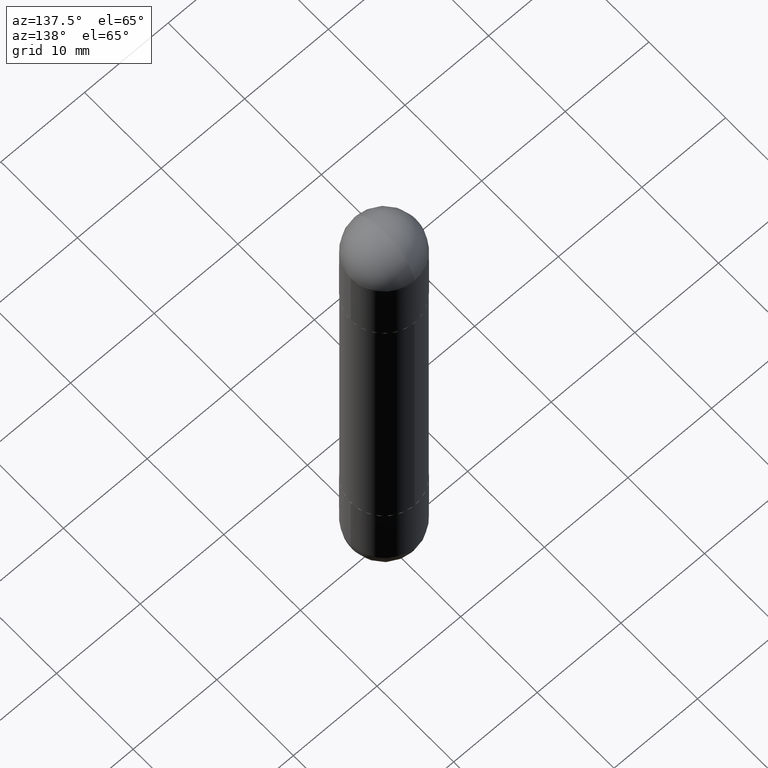
[diagram: clean part render]
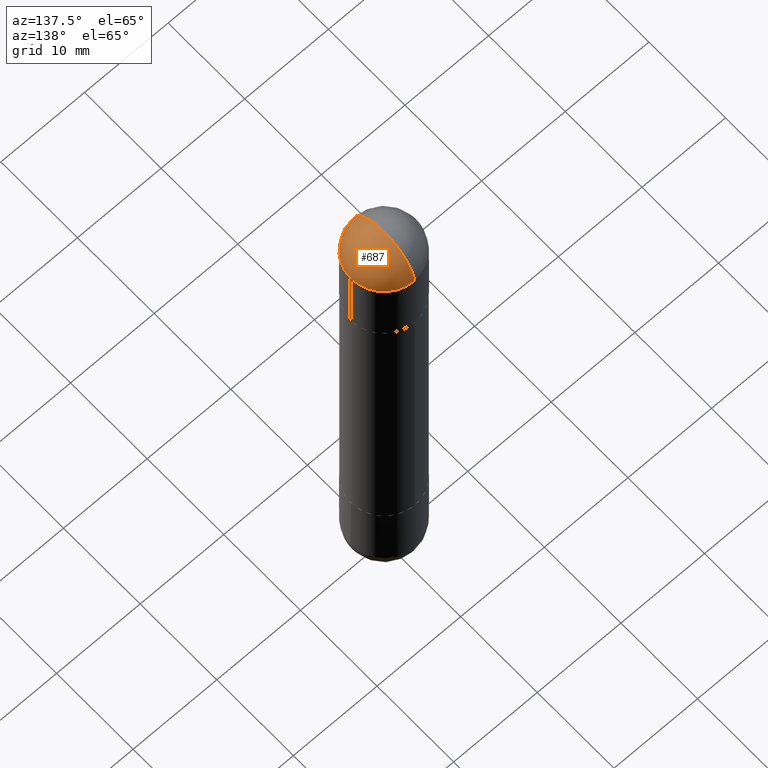
[diagram: same view with one face highlighted and labeled with its STEP entity id]
A machine part, auxiliary view. The second image highlights one B-rep face of the part: STEP entity #687.
In plain terms, the highlighted spherical surface has radius 3.9688 mm.
Its self-contained STEP definition (entity closure, byte-faithful):
#4 = EDGE_CURVE ( 'NONE', #720, #359, #300, .T. ) ;
#42 = DIRECTION ( 'NONE',  ( -1.000000000000000000, 6.982962677686265922E-15, 4.883557194083112340E-29 ) ) ;
#90 = DIRECTION ( 'NONE',  ( 6.860497997771530774E-15, 1.000000000000000000, 0.000000000000000000 ) ) ;
#137 = DIRECTION ( 'NONE',  ( 2.445468806185136597E-29, -3.491481338843145583E-15, 1.000000000000000000 ) ) ;
#148 = CARTESIAN_POINT ( 'NONE',  ( 5.400447736582527652E-29, -8.657341756053672891E-15, -0.1562500000000005551 ) ) ;
#156 = CARTESIAN_POINT ( 'NONE',  ( 5.400447736582527652E-29, -8.657341756053672891E-15, -0.1562500000000005551 ) ) ;
#189 = CARTESIAN_POINT ( 'NONE',  ( 5.789233224183170584E-29, -9.193318162129576161E-15, -3.073328992872296367E-16 ) ) ;
#198 = DIRECTION ( 'NONE',  ( 1.000000000000000000, -6.982962677686262766E-15, 0.000000000000000000 ) ) ;
#201 = VERTEX_POINT ( 'NONE', #243 ) ;
#232 = CARTESIAN_POINT ( 'NONE',  ( 5.731567514496413899E-29, -8.183159387913622595E-15, -0.1562500000000005551 ) ) ;
#233 = VERTEX_POINT ( 'NONE', #550 ) ;
#243 = CARTESIAN_POINT ( 'NONE',  ( -1.071952812151746981E-15, -0.1562500000000085487, -0.1562500000000011102 ) ) ;
#248 = SPHERICAL_SURFACE ( 'NONE', #396, 0.1562500000000002498 ) ;
#260 = AXIS2_PLACEMENT_3D ( 'NONE', #232, #545, #747 ) ;
#272 = AXIS2_PLACEMENT_3D ( 'NONE', #789, #137, #198 ) ;
#292 = EDGE_CURVE ( 'NONE', #201, #233, #725, .T. ) ;
#300 = CIRCLE ( 'NONE', #619, 0.1562500000000002498 ) ;
#308 = DIRECTION ( 'NONE',  ( 1.000000000000000000, -6.982962677686265922E-15, -4.883557194083112340E-29 ) ) ;
#359 = VERTEX_POINT ( 'NONE', #582 ) ;
#372 = EDGE_CURVE ( 'NONE', #720, #201, #578, .T. ) ;
#396 = AXIS2_PLACEMENT_3D ( 'NONE', #506, #308, #560 ) ;
#442 = FACE_OUTER_BOUND ( 'NONE', #472, .T. ) ;
#450 = DIRECTION ( 'NONE',  ( 1.000000000000000000, -6.860497997771530774E-15, -4.840798879624142912E-29 ) ) ;
#472 = EDGE_LOOP ( 'NONE', ( #610, #809, #627, #474 ) ) ;
#474 = ORIENTED_EDGE ( 'NONE', *, *, #533, .T. ) ;
#506 = CARTESIAN_POINT ( 'NONE',  ( 5.400447736582527652E-29, -8.657341756053672891E-15, -0.1562500000000005551 ) ) ;
#533 = EDGE_CURVE ( 'NONE', #233, #359, #657, .T. ) ;
#545 = DIRECTION ( 'NONE',  ( 2.445468806185136597E-29, -3.491481338843145583E-15, 1.000000000000000000 ) ) ;
#550 = CARTESIAN_POINT ( 'NONE',  ( 0.1562500000000000000, -8.674148951188436448E-15, -0.1562500000000005551 ) ) ;
#560 = DIRECTION ( 'NONE',  ( 6.982962677686265922E-15, 1.000000000000000000, 3.496765431890251398E-15 ) ) ;
#578 = CIRCLE ( 'NONE', #669, 0.1562500000000002498 ) ;
#582 = CARTESIAN_POINT ( 'NONE',  ( 1.091087918388535577E-15, 0.1562499999999916733, -0.1562500000000000000 ) ) ;
#610 = ORIENTED_EDGE ( 'NONE', *, *, #4, .F. ) ;
#619 = AXIS2_PLACEMENT_3D ( 'NONE', #156, #42, #666 ) ;
#627 = ORIENTED_EDGE ( 'NONE', *, *, #292, .T. ) ;
#657 = CIRCLE ( 'NONE', #260, 0.1562500000000000000 ) ;
#666 = DIRECTION ( 'NONE',  ( -6.982962677686265922E-15, -1.000000000000000000, 0.000000000000000000 ) ) ;
#669 = AXIS2_PLACEMENT_3D ( 'NONE', #148, #450, #90 ) ;
#687 = ADVANCED_FACE ( 'NONE', ( #442 ), #248, .T. ) ;
#720 = VERTEX_POINT ( 'NONE', #189 ) ;
#725 = CIRCLE ( 'NONE', #272, 0.1562500000000000000 ) ;
#747 = DIRECTION ( 'NONE',  ( 1.000000000000000000, -6.982962677686262766E-15, 0.000000000000000000 ) ) ;
#789 = CARTESIAN_POINT ( 'NONE',  ( 5.731567514496413899E-29, -8.183159387913622595E-15, -0.1562500000000005551 ) ) ;
#809 = ORIENTED_EDGE ( 'NONE', *, *, #372, .T. ) ;